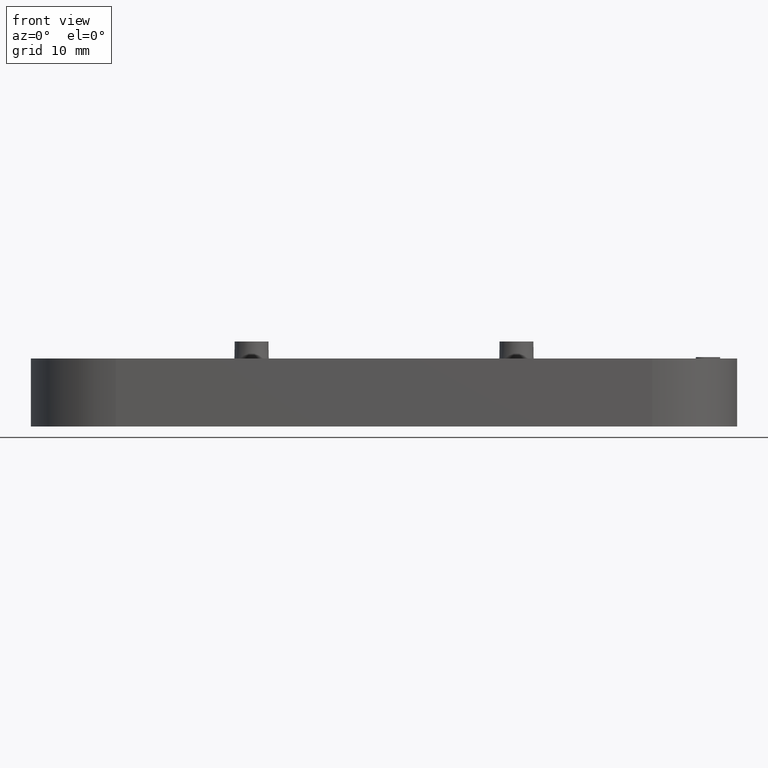
[diagram: clean part render]
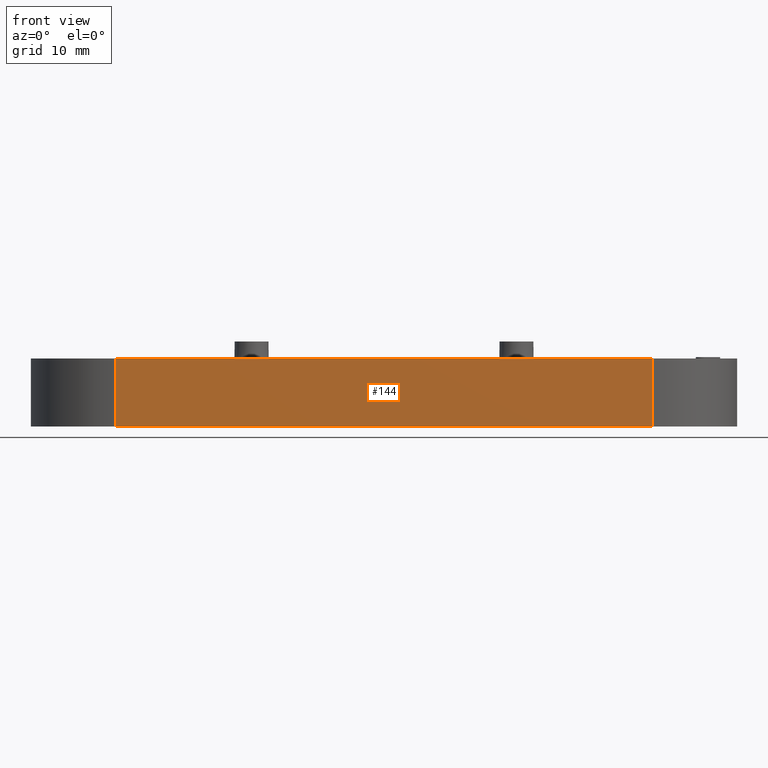
[diagram: same view with one face highlighted and labeled with its STEP entity id]
A machine part, front view. The second image highlights one B-rep face of the part: STEP entity #144.
In plain terms, the highlighted planar face has unit normal (-0, 1, -0).
Its self-contained STEP definition (entity closure, byte-faithful):
#144 = ADVANCED_FACE( '', ( #575 ), #576, .F. );
#575 = FACE_OUTER_BOUND( '', #1341, .T. );
#576 = PLANE( '', #1342 );
#1341 = EDGE_LOOP( '', ( #2541, #2542, #2543, #2544 ) );
#1342 = AXIS2_PLACEMENT_3D( '', #2545, #2546, #2547 );
#2541 = ORIENTED_EDGE( '', *, *, #4807, .T. );
#2542 = ORIENTED_EDGE( '', *, *, #5119, .F. );
#2543 = ORIENTED_EDGE( '', *, *, #5120, .F. );
#2544 = ORIENTED_EDGE( '', *, *, #5117, .T. );
#2545 = CARTESIAN_POINT( '', ( 39.5000000000000, -12.5000000000000, -1.31124088366755E-014 ) );
#2546 = DIRECTION( '', ( -1.75162308040602E-046, 1.00000000000000, -6.12303176911189E-017 ) );
#2547 = DIRECTION( '', ( 1.00000000000000, 1.75162308040602E-046, -9.72346137165804E-063 ) );
#4807 = EDGE_CURVE( '', #5711, #5709, #5712, .T. );
#5117 = EDGE_CURVE( '', #6290, #5711, #6291, .T. );
#5119 = EDGE_CURVE( '', #6293, #5709, #6294, .T. );
#5120 = EDGE_CURVE( '', #6290, #6293, #6295, .T. );
#5709 = VERTEX_POINT( '', #7205 );
#5711 = VERTEX_POINT( '', #7207 );
#5712 = LINE( '', #7208, #7209 );
#6290 = VERTEX_POINT( '', #8060 );
#6291 = LINE( '', #8061, #8062 );
#6293 = VERTEX_POINT( '', #8064 );
#6294 = LINE( '', #8065, #8066 );
#6295 = LINE( '', #8067, #8068 );
#7205 = CARTESIAN_POINT( '', ( -39.5000000000000, -12.5000000000000, 9.99999999999999 ) );
#7207 = CARTESIAN_POINT( '', ( 39.5000000000000, -12.5000000000000, 9.99999999999999 ) );
#7208 = CARTESIAN_POINT( '', ( 39.5000000000000, -12.5000000000000, 9.99999999999999 ) );
#7209 = VECTOR( '', #9477, 1000.00000000000 );
#8060 = CARTESIAN_POINT( '', ( 39.5000000000000, -12.5000000000000, -1.31124088366755E-014 ) );
#8061 = CARTESIAN_POINT( '', ( 39.5000000000000, -12.5000000000000, -1.31124088366755E-014 ) );
#8062 = VECTOR( '', #9859, 1000.00000000000 );
#8064 = CARTESIAN_POINT( '', ( -39.5000000000000, -12.5000000000000, -1.31124088366755E-014 ) );
#8065 = CARTESIAN_POINT( '', ( -39.5000000000000, -12.5000000000000, -1.31124088366755E-014 ) );
#8066 = VECTOR( '', #9863, 1000.00000000000 );
#8067 = CARTESIAN_POINT( '', ( 39.5000000000000, -12.5000000000000, -1.31124088366755E-014 ) );
#8068 = VECTOR( '', #9864, 1000.00000000000 );
#9477 = DIRECTION( '', ( -1.00000000000000, 3.94430452610506E-031, -2.41511019203931E-047 ) );
#9859 = DIRECTION( '', ( 0.000000000000000, 6.12303176911189E-017, 1.00000000000000 ) );
#9863 = DIRECTION( '', ( 0.000000000000000, 6.12303176911189E-017, 1.00000000000000 ) );
#9864 = DIRECTION( '', ( -1.00000000000000, 3.94430452610506E-031, -2.41511019203931E-047 ) );